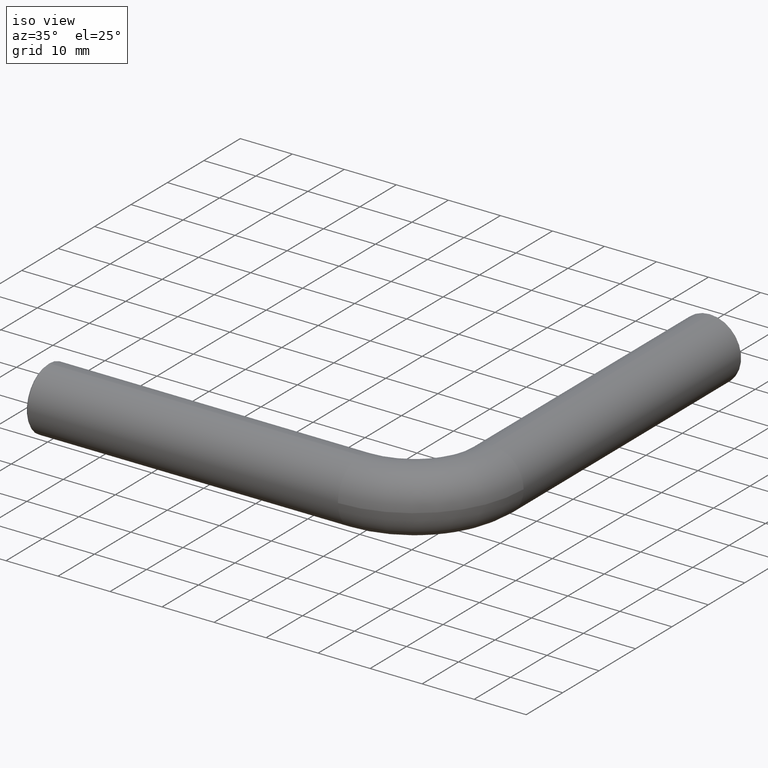
[diagram: clean part render]
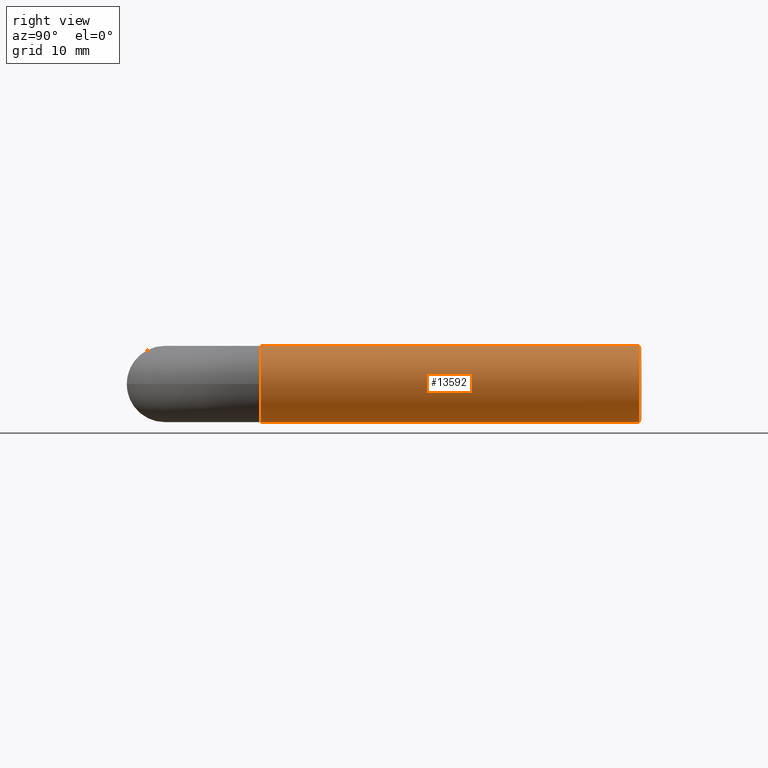
[diagram: tour spotlight — one face highlighted and labeled with its STEP entity id]
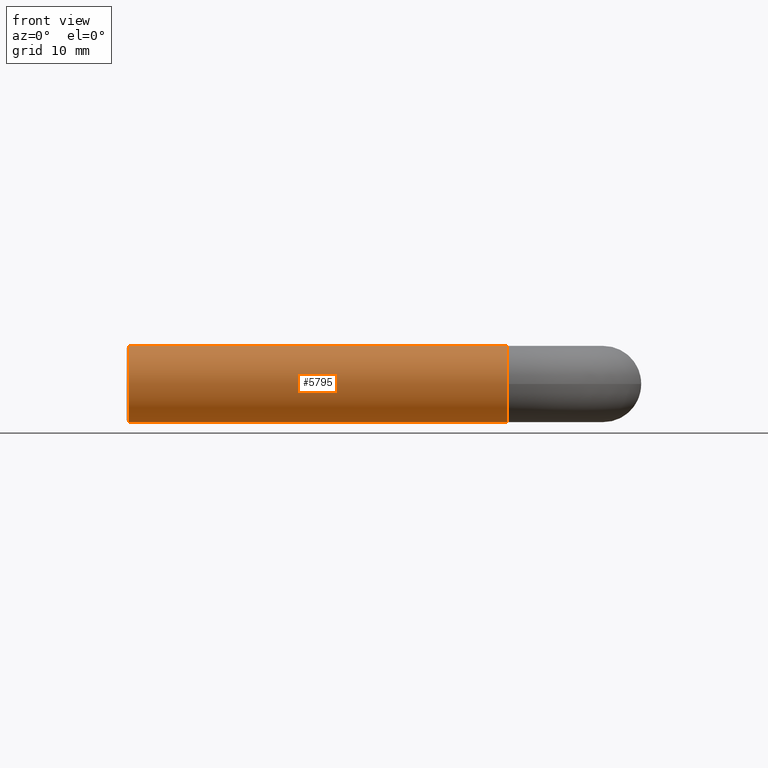
[diagram: tour spotlight — one face highlighted and labeled with its STEP entity id]
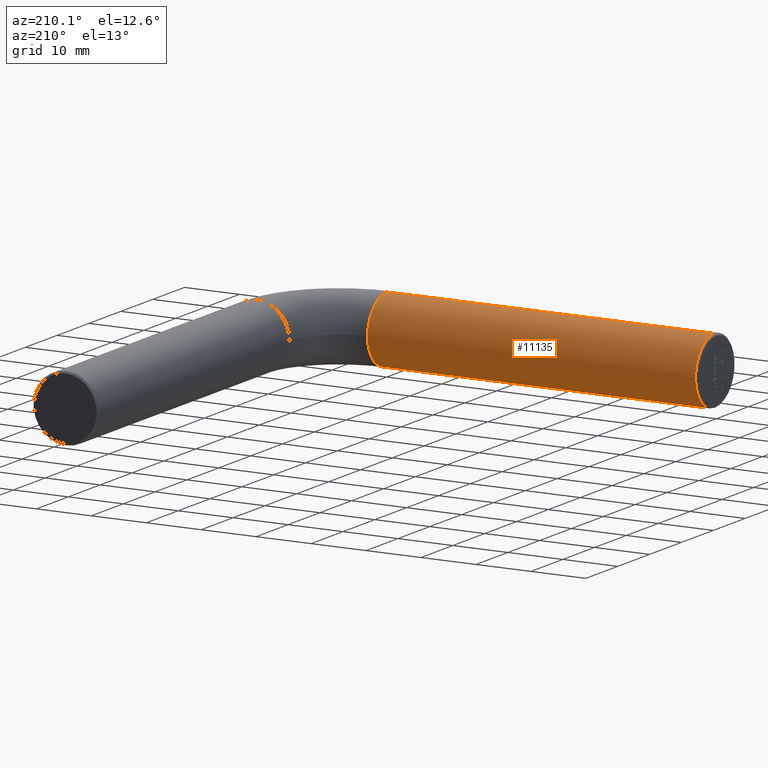
[diagram: tour spotlight — one face highlighted and labeled with its STEP entity id]
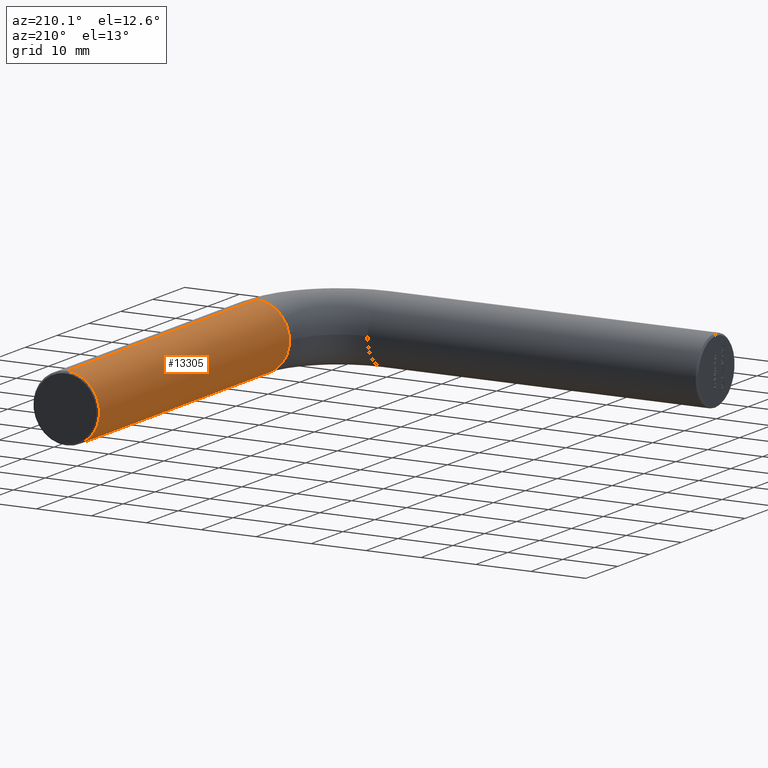
[diagram: tour spotlight — one face highlighted and labeled with its STEP entity id]
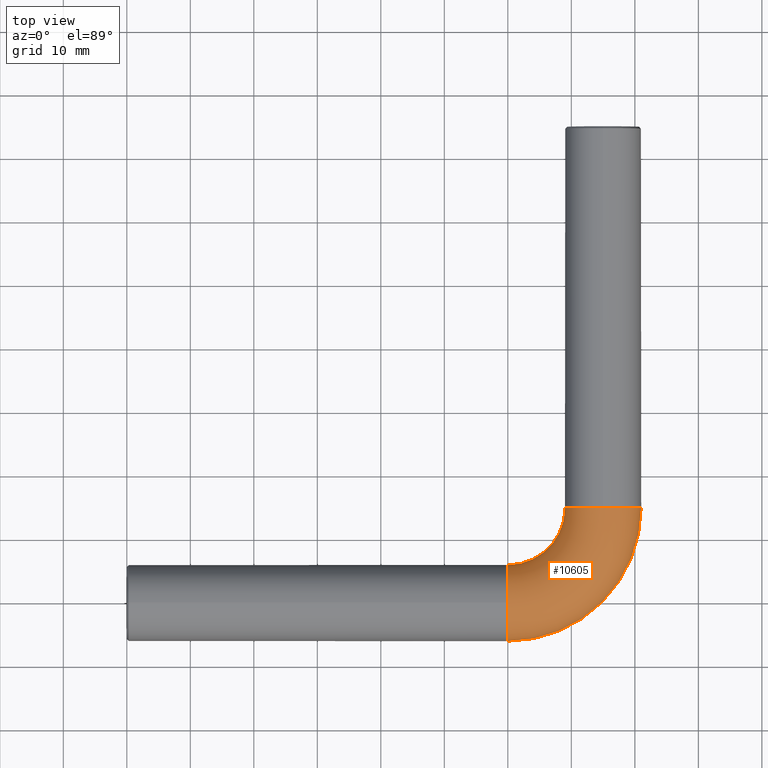
[diagram: tour spotlight — one face highlighted and labeled with its STEP entity id]
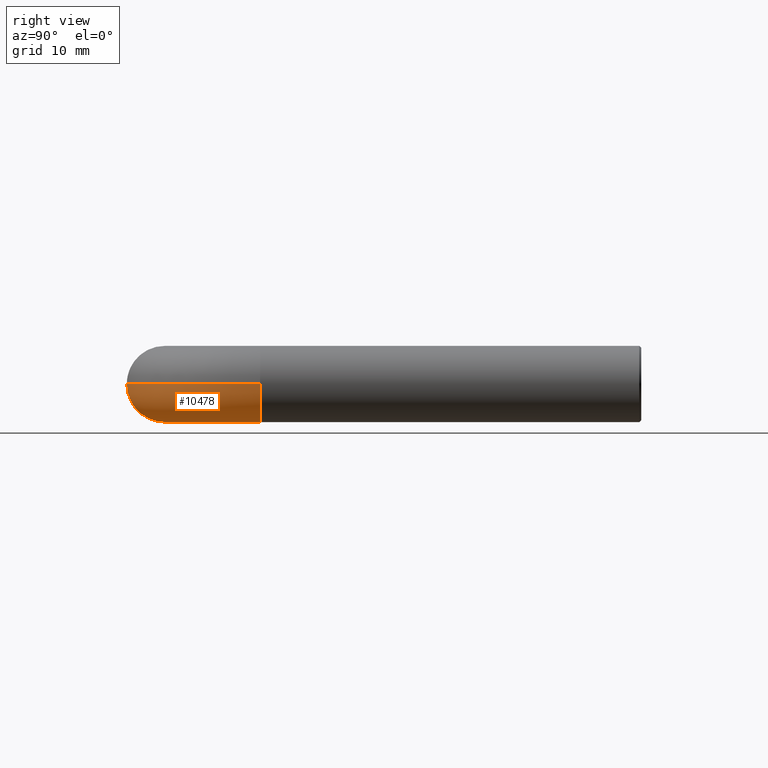
[diagram: tour spotlight — one face highlighted and labeled with its STEP entity id]
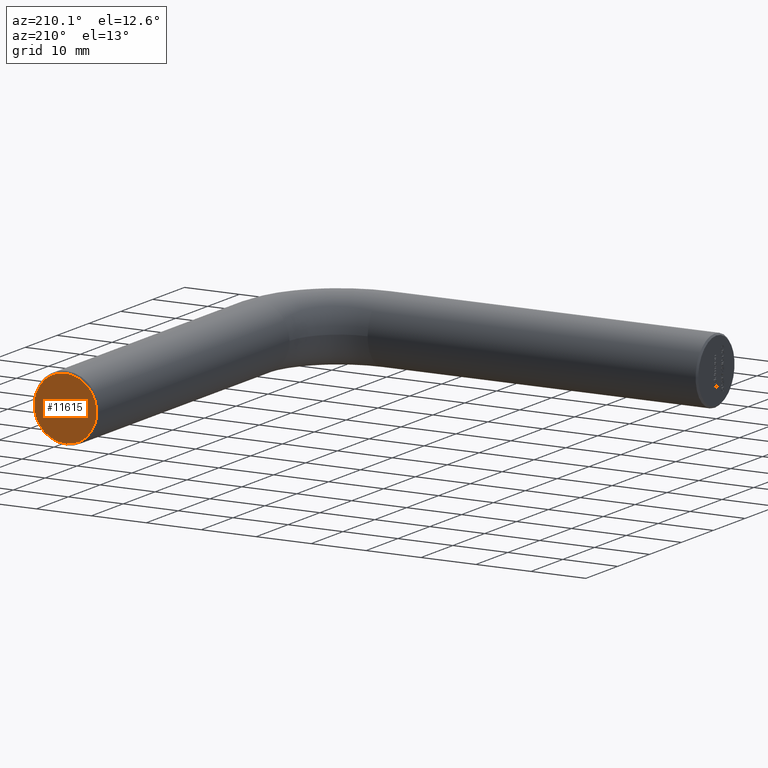
[diagram: tour spotlight — one face highlighted and labeled with its STEP entity id]
A machine part: a face-by-face anatomy tour. The part has 259 B-rep faces; the first image is the clean iso view, then the 7 largest visible faces are spotlighted one at a time (largest first), each with its STEP entity span.

Face 1 — right view, entity #13592. In plain terms, the highlighted cylindrical surface (partial cylindrical patch) has radius 6 mm, axis along (0, 1, 0).
Definition (entity closure, byte-faithful):
#992 = ORIENTED_EDGE ( 'NONE', *, *, #6968, .T. ) ;
#1020 = CYLINDRICAL_SURFACE ( 'NONE', #8392, 6.000000000000000888 ) ;
#1102 = AXIS2_PLACEMENT_3D ( 'NONE', #4839, #11248, #4744 ) ;
#1181 = CARTESIAN_POINT ( 'NONE',  ( 75.00000000000000000, 15.00000000000011013, 0.000000000000000000 ) ) ;
#1591 = VECTOR ( 'NONE', #3405, 1000.000000000000000 ) ;
#1702 = CARTESIAN_POINT ( 'NONE',  ( 75.00000000000000000, 15.00000000000011013, -6.000000000000000888 ) ) ;
#1904 = VECTOR ( 'NONE', #12526, 1000.000000000000000 ) ;
#2395 = CARTESIAN_POINT ( 'NONE',  ( 75.00000000000000000, 74.70000000000000284, 0.000000000000000000 ) ) ;
#2658 = AXIS2_PLACEMENT_3D ( 'NONE', #3732, #10163, #13520 ) ;
#2799 = VERTEX_POINT ( 'NONE', #13103 ) ;
#3320 = EDGE_LOOP ( 'NONE', ( #9783, #11270, #11471, #992, #11729 ) ) ;
#3405 = DIRECTION ( 'NONE',  ( 0.000000000000000000, 1.000000000000000000, 0.000000000000000000 ) ) ;
#3441 = FACE_OUTER_BOUND ( 'NONE', #3320, .T. ) ;
#3590 = VERTEX_POINT ( 'NONE', #4689 ) ;
#3633 = CARTESIAN_POINT ( 'NONE',  ( 81.00000000000000000, 15.00000000000019362, 0.000000000000000000 ) ) ;
#3732 = CARTESIAN_POINT ( 'NONE',  ( 75.00000000000000000, 15.00000000000011013, 0.000000000000000000 ) ) ;
#4454 = CARTESIAN_POINT ( 'NONE',  ( 75.00000000000000000, 15.00000000000011013, 6.000000000000000888 ) ) ;
#4529 = CIRCLE ( 'NONE', #2658, 6.000000000000000888 ) ;
#4689 = CARTESIAN_POINT ( 'NONE',  ( 75.00000000000000000, 74.70000000000000284, -6.000000000000000888 ) ) ;
#4702 = VERTEX_POINT ( 'NONE', #11988 ) ;
#4744 = DIRECTION ( 'NONE',  ( 0.000000000000000000, 0.000000000000000000, -1.000000000000000000 ) ) ;
#4839 = CARTESIAN_POINT ( 'NONE',  ( 75.00000000000000000, 15.00000000000011013, 0.000000000000000000 ) ) ;
#4892 = EDGE_CURVE ( 'NONE', #6827, #2799, #4529, .T. ) ;
#5303 = EDGE_CURVE ( 'NONE', #10239, #4702, #8286, .T. ) ;
#6515 = EDGE_CURVE ( 'NONE', #2799, #3590, #9151, .T. ) ;
#6827 = VERTEX_POINT ( 'NONE', #3633 ) ;
#6875 = DIRECTION ( 'NONE',  ( 0.000000000000000000, -1.000000000000000000, 0.000000000000000000 ) ) ;
#6968 = EDGE_CURVE ( 'NONE', #3590, #4702, #8413, .T. ) ;
#8282 = CIRCLE ( 'NONE', #1102, 6.000000000000000888 ) ;
#8286 = LINE ( 'NONE', #10971, #1591 ) ;
#8392 = AXIS2_PLACEMENT_3D ( 'NONE', #1181, #12144, #11036 ) ;
#8413 = CIRCLE ( 'NONE', #9513, 6.000000000000000888 ) ;
#9151 = LINE ( 'NONE', #1702, #1904 ) ;
#9513 = AXIS2_PLACEMENT_3D ( 'NONE', #2395, #6875, #10110 ) ;
#9783 = ORIENTED_EDGE ( 'NONE', *, *, #11741, .T. ) ;
#10110 = DIRECTION ( 'NONE',  ( 0.000000000000000000, 0.000000000000000000, 1.000000000000000000 ) ) ;
#10163 = DIRECTION ( 'NONE',  ( -1.414962237524463614E-14, 1.000000000000000000, 0.000000000000000000 ) ) ;
#10239 = VERTEX_POINT ( 'NONE', #4454 ) ;
#10971 = CARTESIAN_POINT ( 'NONE',  ( 75.00000000000000000, 15.00000000000011013, 6.000000000000000888 ) ) ;
#11036 = DIRECTION ( 'NONE',  ( 0.000000000000000000, 0.000000000000000000, 1.000000000000000000 ) ) ;
#11248 = DIRECTION ( 'NONE',  ( -1.414962237524463614E-14, 1.000000000000000000, 0.000000000000000000 ) ) ;
#11270 = ORIENTED_EDGE ( 'NONE', *, *, #4892, .T. ) ;
#11471 = ORIENTED_EDGE ( 'NONE', *, *, #6515, .T. ) ;
#11729 = ORIENTED_EDGE ( 'NONE', *, *, #5303, .F. ) ;
#11741 = EDGE_CURVE ( 'NONE', #10239, #6827, #8282, .T. ) ;
#11988 = CARTESIAN_POINT ( 'NONE',  ( 75.00000000000000000, 74.70000000000000284, 6.000000000000000888 ) ) ;
#12144 = DIRECTION ( 'NONE',  ( 0.000000000000000000, 1.000000000000000000, 0.000000000000000000 ) ) ;
#12526 = DIRECTION ( 'NONE',  ( 0.000000000000000000, 1.000000000000000000, 0.000000000000000000 ) ) ;
#13103 = CARTESIAN_POINT ( 'NONE',  ( 75.00000000000000000, 15.00000000000011013, -6.000000000000000888 ) ) ;
#13520 = DIRECTION ( 'NONE',  ( 0.000000000000000000, 0.000000000000000000, -1.000000000000000000 ) ) ;
#13592 = ADVANCED_FACE ( 'NONE', ( #3441 ), #1020, .T. ) ;

Face 2 — front view, entity #5795. In plain terms, the highlighted cylindrical surface (partial cylindrical patch) has radius 6 mm, axis along (-1, -0, -0).
Definition (entity closure, byte-faithful):
#73 = EDGE_CURVE ( 'NONE', #10549, #8979, #3873, .T. ) ;
#231 = CARTESIAN_POINT ( 'NONE',  ( 59.99999999999989342, 0.000000000000000000, 0.000000000000000000 ) ) ;
#633 = CARTESIAN_POINT ( 'NONE',  ( 59.99999999999989342, 0.000000000000000000, 6.000000000000000888 ) ) ;
#710 = EDGE_CURVE ( 'NONE', #10549, #13891, #2268, .T. ) ;
#1570 = CARTESIAN_POINT ( 'NONE',  ( 59.99999999999989342, 7.347880794884120722E-16, -6.000000000000000888 ) ) ;
#1973 = DIRECTION ( 'NONE',  ( 1.000000000000000000, -0.000000000000000000, -0.000000000000000000 ) ) ;
#2139 = CARTESIAN_POINT ( 'NONE',  ( 59.99999999999989342, 0.000000000000000000, 0.000000000000000000 ) ) ;
#2158 = EDGE_CURVE ( 'NONE', #8979, #4488, #7796, .T. ) ;
#2268 = LINE ( 'NONE', #6151, #13641 ) ;
#3040 = AXIS2_PLACEMENT_3D ( 'NONE', #2139, #6623, #11964 ) ;
#3679 = AXIS2_PLACEMENT_3D ( 'NONE', #6326, #7504, #7548 ) ;
#3873 = CIRCLE ( 'NONE', #3679, 6.000000000000000888 ) ;
#4488 = VERTEX_POINT ( 'NONE', #7062 ) ;
#4737 = AXIS2_PLACEMENT_3D ( 'NONE', #8449, #1973, #10677 ) ;
#5100 = ORIENTED_EDGE ( 'NONE', *, *, #710, .T. ) ;
#5355 = VECTOR ( 'NONE', #10383, 1000.000000000000000 ) ;
#5795 = ADVANCED_FACE ( 'NONE', ( #7913 ), #10859, .T. ) ;
#5871 = DIRECTION ( 'NONE',  ( 1.000000000000000000, 0.000000000000000000, 0.000000000000000000 ) ) ;
#5981 = CARTESIAN_POINT ( 'NONE',  ( 59.99999999999989342, -6.000000000000001776, 0.000000000000000000 ) ) ;
#6151 = CARTESIAN_POINT ( 'NONE',  ( 59.99999999999989342, 0.000000000000000000, 6.000000000000000888 ) ) ;
#6154 = VERTEX_POINT ( 'NONE', #8395 ) ;
#6326 = CARTESIAN_POINT ( 'NONE',  ( 59.99999999999989342, 0.000000000000000000, 0.000000000000000000 ) ) ;
#6443 = ORIENTED_EDGE ( 'NONE', *, *, #2158, .F. ) ;
#6531 = AXIS2_PLACEMENT_3D ( 'NONE', #231, #5871, #12480 ) ;
#6623 = DIRECTION ( 'NONE',  ( -1.000000000000000000, -0.000000000000000000, -0.000000000000000000 ) ) ;
#7062 = CARTESIAN_POINT ( 'NONE',  ( 59.99999999999989342, 7.347880794884120722E-16, -6.000000000000000888 ) ) ;
#7104 = DIRECTION ( 'NONE',  ( -1.000000000000000000, -0.000000000000000000, -0.000000000000000000 ) ) ;
#7504 = DIRECTION ( 'NONE',  ( 1.000000000000000000, 0.000000000000000000, 0.000000000000000000 ) ) ;
#7548 = DIRECTION ( 'NONE',  ( 0.000000000000000000, 0.000000000000000000, -1.000000000000000000 ) ) ;
#7796 = CIRCLE ( 'NONE', #6531, 6.000000000000000888 ) ;
#7913 = FACE_OUTER_BOUND ( 'NONE', #8847, .T. ) ;
#8395 = CARTESIAN_POINT ( 'NONE',  ( 0.3000000000000085931, 7.347880794884120722E-16, -6.000000000000000888 ) ) ;
#8449 = CARTESIAN_POINT ( 'NONE',  ( 0.3000000000000085931, 0.000000000000000000, 0.000000000000000000 ) ) ;
#8507 = ORIENTED_EDGE ( 'NONE', *, *, #73, .F. ) ;
#8654 = ORIENTED_EDGE ( 'NONE', *, *, #13407, .T. ) ;
#8847 = EDGE_LOOP ( 'NONE', ( #13479, #6443, #8507, #5100, #8654 ) ) ;
#8979 = VERTEX_POINT ( 'NONE', #5981 ) ;
#9315 = CIRCLE ( 'NONE', #4737, 6.000000000000000888 ) ;
#10383 = DIRECTION ( 'NONE',  ( -1.000000000000000000, -0.000000000000000000, -0.000000000000000000 ) ) ;
#10549 = VERTEX_POINT ( 'NONE', #633 ) ;
#10677 = DIRECTION ( 'NONE',  ( 0.000000000000000000, 0.000000000000000000, -1.000000000000000000 ) ) ;
#10859 = CYLINDRICAL_SURFACE ( 'NONE', #3040, 6.000000000000000888 ) ;
#11964 = DIRECTION ( 'NONE',  ( 0.000000000000000000, 0.000000000000000000, 1.000000000000000000 ) ) ;
#12139 = CARTESIAN_POINT ( 'NONE',  ( 0.3000000000000085931, 0.000000000000000000, 6.000000000000000888 ) ) ;
#12480 = DIRECTION ( 'NONE',  ( 0.000000000000000000, 0.000000000000000000, -1.000000000000000000 ) ) ;
#13407 = EDGE_CURVE ( 'NONE', #13891, #6154, #9315, .T. ) ;
#13414 = LINE ( 'NONE', #1570, #5355 ) ;
#13479 = ORIENTED_EDGE ( 'NONE', *, *, #14142, .F. ) ;
#13641 = VECTOR ( 'NONE', #7104, 1000.000000000000000 ) ;
#13891 = VERTEX_POINT ( 'NONE', #12139 ) ;
#14142 = EDGE_CURVE ( 'NONE', #4488, #6154, #13414, .T. ) ;

Face 3 — auxiliary view, entity #11135. In plain terms, the highlighted cylindrical surface (partial cylindrical patch) has radius 6 mm, axis along (-1, -0, -0).
Definition (entity closure, byte-faithful):
#104 = ORIENTED_EDGE ( 'NONE', *, *, #8830, .T. ) ;
#633 = CARTESIAN_POINT ( 'NONE',  ( 59.99999999999989342, 0.000000000000000000, 6.000000000000000888 ) ) ;
#710 = EDGE_CURVE ( 'NONE', #10549, #13891, #2268, .T. ) ;
#824 = ORIENTED_EDGE ( 'NONE', *, *, #9365, .F. ) ;
#1142 = DIRECTION ( 'NONE',  ( 1.000000000000000000, -0.000000000000000000, -0.000000000000000000 ) ) ;
#1202 = CIRCLE ( 'NONE', #3501, 6.000000000000000888 ) ;
#1570 = CARTESIAN_POINT ( 'NONE',  ( 59.99999999999989342, 7.347880794884120722E-16, -6.000000000000000888 ) ) ;
#1916 = DIRECTION ( 'NONE',  ( 0.000000000000000000, 0.000000000000000000, 1.000000000000000000 ) ) ;
#2268 = LINE ( 'NONE', #6151, #13641 ) ;
#2653 = CARTESIAN_POINT ( 'NONE',  ( 59.99999999999989342, 6.000000000000000888, -7.347880794884119736E-16 ) ) ;
#2933 = DIRECTION ( 'NONE',  ( -1.000000000000000000, -0.000000000000000000, -0.000000000000000000 ) ) ;
#3095 = CIRCLE ( 'NONE', #8089, 6.000000000000000888 ) ;
#3294 = CARTESIAN_POINT ( 'NONE',  ( 59.99999999999989342, 0.000000000000000000, 0.000000000000000000 ) ) ;
#3501 = AXIS2_PLACEMENT_3D ( 'NONE', #6023, #9348, #7144 ) ;
#3908 = VERTEX_POINT ( 'NONE', #2653 ) ;
#4194 = CYLINDRICAL_SURFACE ( 'NONE', #11226, 6.000000000000000888 ) ;
#4297 = CIRCLE ( 'NONE', #6897, 6.000000000000000888 ) ;
#4488 = VERTEX_POINT ( 'NONE', #7062 ) ;
#5355 = VECTOR ( 'NONE', #10383, 1000.000000000000000 ) ;
#5634 = EDGE_LOOP ( 'NONE', ( #824, #10951, #104, #13060, #12777 ) ) ;
#6023 = CARTESIAN_POINT ( 'NONE',  ( 59.99999999999989342, 0.000000000000000000, 0.000000000000000000 ) ) ;
#6151 = CARTESIAN_POINT ( 'NONE',  ( 59.99999999999989342, 0.000000000000000000, 6.000000000000000888 ) ) ;
#6154 = VERTEX_POINT ( 'NONE', #8395 ) ;
#6470 = EDGE_CURVE ( 'NONE', #3908, #10549, #1202, .T. ) ;
#6471 = DIRECTION ( 'NONE',  ( 0.000000000000000000, 0.000000000000000000, -1.000000000000000000 ) ) ;
#6897 = AXIS2_PLACEMENT_3D ( 'NONE', #3294, #14184, #6471 ) ;
#7062 = CARTESIAN_POINT ( 'NONE',  ( 59.99999999999989342, 7.347880794884120722E-16, -6.000000000000000888 ) ) ;
#7104 = DIRECTION ( 'NONE',  ( -1.000000000000000000, -0.000000000000000000, -0.000000000000000000 ) ) ;
#7144 = DIRECTION ( 'NONE',  ( 0.000000000000000000, 0.000000000000000000, -1.000000000000000000 ) ) ;
#8089 = AXIS2_PLACEMENT_3D ( 'NONE', #9876, #1142, #8804 ) ;
#8395 = CARTESIAN_POINT ( 'NONE',  ( 0.3000000000000085931, 7.347880794884120722E-16, -6.000000000000000888 ) ) ;
#8804 = DIRECTION ( 'NONE',  ( 0.000000000000000000, 0.000000000000000000, -1.000000000000000000 ) ) ;
#8830 = EDGE_CURVE ( 'NONE', #6154, #13891, #3095, .T. ) ;
#9348 = DIRECTION ( 'NONE',  ( 1.000000000000000000, 0.000000000000000000, 0.000000000000000000 ) ) ;
#9365 = EDGE_CURVE ( 'NONE', #4488, #3908, #4297, .T. ) ;
#9550 = CARTESIAN_POINT ( 'NONE',  ( 59.99999999999989342, 0.000000000000000000, 0.000000000000000000 ) ) ;
#9876 = CARTESIAN_POINT ( 'NONE',  ( 0.3000000000000085931, 0.000000000000000000, 0.000000000000000000 ) ) ;
#10383 = DIRECTION ( 'NONE',  ( -1.000000000000000000, -0.000000000000000000, -0.000000000000000000 ) ) ;
#10549 = VERTEX_POINT ( 'NONE', #633 ) ;
#10869 = FACE_OUTER_BOUND ( 'NONE', #5634, .T. ) ;
#10951 = ORIENTED_EDGE ( 'NONE', *, *, #14142, .T. ) ;
#11135 = ADVANCED_FACE ( 'NONE', ( #10869 ), #4194, .T. ) ;
#11226 = AXIS2_PLACEMENT_3D ( 'NONE', #9550, #2933, #1916 ) ;
#12139 = CARTESIAN_POINT ( 'NONE',  ( 0.3000000000000085931, 0.000000000000000000, 6.000000000000000888 ) ) ;
#12777 = ORIENTED_EDGE ( 'NONE', *, *, #6470, .F. ) ;
#13060 = ORIENTED_EDGE ( 'NONE', *, *, #710, .F. ) ;
#13414 = LINE ( 'NONE', #1570, #5355 ) ;
#13641 = VECTOR ( 'NONE', #7104, 1000.000000000000000 ) ;
#13891 = VERTEX_POINT ( 'NONE', #12139 ) ;
#14142 = EDGE_CURVE ( 'NONE', #4488, #6154, #13414, .T. ) ;
#14184 = DIRECTION ( 'NONE',  ( 1.000000000000000000, 0.000000000000000000, 0.000000000000000000 ) ) ;

Face 4 — auxiliary view, entity #13305. In plain terms, the highlighted cylindrical surface (partial cylindrical patch) has radius 6 mm, axis along (0, 1, 0).
Definition (entity closure, byte-faithful):
#112 = EDGE_CURVE ( 'NONE', #2799, #1680, #2450, .T. ) ;
#440 = CARTESIAN_POINT ( 'NONE',  ( 75.00000000000000000, 15.00000000000011013, 0.000000000000000000 ) ) ;
#447 = AXIS2_PLACEMENT_3D ( 'NONE', #13953, #10734, #4123 ) ;
#548 = AXIS2_PLACEMENT_3D ( 'NONE', #440, #13598, #7023 ) ;
#809 = AXIS2_PLACEMENT_3D ( 'NONE', #7317, #10590, #8513 ) ;
#1227 = EDGE_CURVE ( 'NONE', #4702, #3590, #9761, .T. ) ;
#1591 = VECTOR ( 'NONE', #3405, 1000.000000000000000 ) ;
#1680 = VERTEX_POINT ( 'NONE', #11662 ) ;
#1702 = CARTESIAN_POINT ( 'NONE',  ( 75.00000000000000000, 15.00000000000011013, -6.000000000000000888 ) ) ;
#1904 = VECTOR ( 'NONE', #12526, 1000.000000000000000 ) ;
#2220 = FACE_OUTER_BOUND ( 'NONE', #5963, .T. ) ;
#2450 = CIRCLE ( 'NONE', #447, 6.000000000000000888 ) ;
#2799 = VERTEX_POINT ( 'NONE', #13103 ) ;
#3405 = DIRECTION ( 'NONE',  ( 0.000000000000000000, 1.000000000000000000, 0.000000000000000000 ) ) ;
#3590 = VERTEX_POINT ( 'NONE', #4689 ) ;
#4123 = DIRECTION ( 'NONE',  ( 0.000000000000000000, 0.000000000000000000, -1.000000000000000000 ) ) ;
#4362 = ORIENTED_EDGE ( 'NONE', *, *, #6515, .F. ) ;
#4454 = CARTESIAN_POINT ( 'NONE',  ( 75.00000000000000000, 15.00000000000011013, 6.000000000000000888 ) ) ;
#4689 = CARTESIAN_POINT ( 'NONE',  ( 75.00000000000000000, 74.70000000000000284, -6.000000000000000888 ) ) ;
#4702 = VERTEX_POINT ( 'NONE', #11988 ) ;
#4852 = CIRCLE ( 'NONE', #548, 6.000000000000000888 ) ;
#5009 = ORIENTED_EDGE ( 'NONE', *, *, #112, .T. ) ;
#5210 = ORIENTED_EDGE ( 'NONE', *, *, #6074, .T. ) ;
#5303 = EDGE_CURVE ( 'NONE', #10239, #4702, #8286, .T. ) ;
#5963 = EDGE_LOOP ( 'NONE', ( #4362, #5009, #5210, #6052, #9881 ) ) ;
#6052 = ORIENTED_EDGE ( 'NONE', *, *, #5303, .T. ) ;
#6074 = EDGE_CURVE ( 'NONE', #1680, #10239, #4852, .T. ) ;
#6515 = EDGE_CURVE ( 'NONE', #2799, #3590, #9151, .T. ) ;
#6793 = DIRECTION ( 'NONE',  ( 0.000000000000000000, 0.000000000000000000, 1.000000000000000000 ) ) ;
#6978 = CARTESIAN_POINT ( 'NONE',  ( 75.00000000000000000, 15.00000000000011013, 0.000000000000000000 ) ) ;
#7023 = DIRECTION ( 'NONE',  ( 0.000000000000000000, 0.000000000000000000, -1.000000000000000000 ) ) ;
#7317 = CARTESIAN_POINT ( 'NONE',  ( 75.00000000000000000, 74.70000000000000284, 0.000000000000000000 ) ) ;
#8286 = LINE ( 'NONE', #10971, #1591 ) ;
#8513 = DIRECTION ( 'NONE',  ( 0.000000000000000000, 0.000000000000000000, 1.000000000000000000 ) ) ;
#9151 = LINE ( 'NONE', #1702, #1904 ) ;
#9761 = CIRCLE ( 'NONE', #809, 6.000000000000000888 ) ;
#9881 = ORIENTED_EDGE ( 'NONE', *, *, #1227, .T. ) ;
#10239 = VERTEX_POINT ( 'NONE', #4454 ) ;
#10336 = CYLINDRICAL_SURFACE ( 'NONE', #11333, 6.000000000000000888 ) ;
#10590 = DIRECTION ( 'NONE',  ( 0.000000000000000000, -1.000000000000000000, 0.000000000000000000 ) ) ;
#10734 = DIRECTION ( 'NONE',  ( -1.414962237524463614E-14, 1.000000000000000000, 0.000000000000000000 ) ) ;
#10971 = CARTESIAN_POINT ( 'NONE',  ( 75.00000000000000000, 15.00000000000011013, 6.000000000000000888 ) ) ;
#11333 = AXIS2_PLACEMENT_3D ( 'NONE', #6978, #13361, #6793 ) ;
#11662 = CARTESIAN_POINT ( 'NONE',  ( 68.99999999999998579, 15.00000000000002487, -7.347880794884114806E-16 ) ) ;
#11988 = CARTESIAN_POINT ( 'NONE',  ( 75.00000000000000000, 74.70000000000000284, 6.000000000000000888 ) ) ;
#12526 = DIRECTION ( 'NONE',  ( 0.000000000000000000, 1.000000000000000000, 0.000000000000000000 ) ) ;
#13103 = CARTESIAN_POINT ( 'NONE',  ( 75.00000000000000000, 15.00000000000011013, -6.000000000000000888 ) ) ;
#13305 = ADVANCED_FACE ( 'NONE', ( #2220 ), #10336, .T. ) ;
#13361 = DIRECTION ( 'NONE',  ( 0.000000000000000000, 1.000000000000000000, 0.000000000000000000 ) ) ;
#13598 = DIRECTION ( 'NONE',  ( -1.414962237524463614E-14, 1.000000000000000000, 0.000000000000000000 ) ) ;
#13953 = CARTESIAN_POINT ( 'NONE',  ( 75.00000000000000000, 15.00000000000011013, 0.000000000000000000 ) ) ;

Face 5 — top view, entity #10605. In plain terms, the highlighted toroidal blend (fillet) surface has major radius 15 mm and minor (blend) radius 6 mm.
Definition (entity closure, byte-faithful):
#73 = EDGE_CURVE ( 'NONE', #10549, #8979, #3873, .T. ) ;
#440 = CARTESIAN_POINT ( 'NONE',  ( 75.00000000000000000, 15.00000000000011013, 0.000000000000000000 ) ) ;
#548 = AXIS2_PLACEMENT_3D ( 'NONE', #440, #13598, #7023 ) ;
#633 = CARTESIAN_POINT ( 'NONE',  ( 59.99999999999989342, 0.000000000000000000, 6.000000000000000888 ) ) ;
#819 = DIRECTION ( 'NONE',  ( 0.000000000000000000, 0.000000000000000000, 1.000000000000000000 ) ) ;
#1102 = AXIS2_PLACEMENT_3D ( 'NONE', #4839, #11248, #4744 ) ;
#1202 = CIRCLE ( 'NONE', #3501, 6.000000000000000888 ) ;
#1248 = DIRECTION ( 'NONE',  ( 1.000000000000000000, 0.000000000000000000, 0.000000000000000000 ) ) ;
#1680 = VERTEX_POINT ( 'NONE', #11662 ) ;
#2350 = DIRECTION ( 'NONE',  ( 0.000000000000000000, 0.000000000000000000, 1.000000000000000000 ) ) ;
#2351 = FACE_OUTER_BOUND ( 'NONE', #3539, .T. ) ;
#2653 = CARTESIAN_POINT ( 'NONE',  ( 59.99999999999989342, 6.000000000000000888, -7.347880794884119736E-16 ) ) ;
#3501 = AXIS2_PLACEMENT_3D ( 'NONE', #6023, #9348, #7144 ) ;
#3539 = EDGE_LOOP ( 'NONE', ( #11944, #7795, #12838, #13662, #10321, #8888 ) ) ;
#3615 = DIRECTION ( 'NONE',  ( 0.000000000000000000, 0.000000000000000000, 1.000000000000000000 ) ) ;
#3633 = CARTESIAN_POINT ( 'NONE',  ( 81.00000000000000000, 15.00000000000019362, 0.000000000000000000 ) ) ;
#3679 = AXIS2_PLACEMENT_3D ( 'NONE', #6326, #7504, #7548 ) ;
#3764 = EDGE_CURVE ( 'NONE', #3908, #1680, #12908, .T. ) ;
#3873 = CIRCLE ( 'NONE', #3679, 6.000000000000000888 ) ;
#3908 = VERTEX_POINT ( 'NONE', #2653 ) ;
#4219 = CARTESIAN_POINT ( 'NONE',  ( 60.00000000000000000, 15.00000000000000000, 0.000000000000000000 ) ) ;
#4454 = CARTESIAN_POINT ( 'NONE',  ( 75.00000000000000000, 15.00000000000011013, 6.000000000000000888 ) ) ;
#4744 = DIRECTION ( 'NONE',  ( 0.000000000000000000, 0.000000000000000000, -1.000000000000000000 ) ) ;
#4839 = CARTESIAN_POINT ( 'NONE',  ( 75.00000000000000000, 15.00000000000011013, 0.000000000000000000 ) ) ;
#4852 = CIRCLE ( 'NONE', #548, 6.000000000000000888 ) ;
#5071 = AXIS2_PLACEMENT_3D ( 'NONE', #10060, #3615, #13406 ) ;
#5089 = AXIS2_PLACEMENT_3D ( 'NONE', #4219, #819, #6282 ) ;
#5981 = CARTESIAN_POINT ( 'NONE',  ( 59.99999999999989342, -6.000000000000001776, 0.000000000000000000 ) ) ;
#6023 = CARTESIAN_POINT ( 'NONE',  ( 59.99999999999989342, 0.000000000000000000, 0.000000000000000000 ) ) ;
#6074 = EDGE_CURVE ( 'NONE', #1680, #10239, #4852, .T. ) ;
#6282 = DIRECTION ( 'NONE',  ( 1.000000000000000000, 0.000000000000000000, 0.000000000000000000 ) ) ;
#6326 = CARTESIAN_POINT ( 'NONE',  ( 59.99999999999989342, 0.000000000000000000, 0.000000000000000000 ) ) ;
#6470 = EDGE_CURVE ( 'NONE', #3908, #10549, #1202, .T. ) ;
#6827 = VERTEX_POINT ( 'NONE', #3633 ) ;
#7023 = DIRECTION ( 'NONE',  ( 0.000000000000000000, 0.000000000000000000, -1.000000000000000000 ) ) ;
#7144 = DIRECTION ( 'NONE',  ( 0.000000000000000000, 0.000000000000000000, -1.000000000000000000 ) ) ;
#7504 = DIRECTION ( 'NONE',  ( 1.000000000000000000, 0.000000000000000000, 0.000000000000000000 ) ) ;
#7548 = DIRECTION ( 'NONE',  ( 0.000000000000000000, 0.000000000000000000, -1.000000000000000000 ) ) ;
#7693 = EDGE_CURVE ( 'NONE', #8979, #6827, #12885, .T. ) ;
#7795 = ORIENTED_EDGE ( 'NONE', *, *, #7693, .T. ) ;
#8282 = CIRCLE ( 'NONE', #1102, 6.000000000000000888 ) ;
#8550 = AXIS2_PLACEMENT_3D ( 'NONE', #13463, #2350, #1248 ) ;
#8720 = TOROIDAL_SURFACE ( 'NONE', #5089, 15.00000000000000000, 6.000000000000000888 ) ;
#8888 = ORIENTED_EDGE ( 'NONE', *, *, #6470, .T. ) ;
#8979 = VERTEX_POINT ( 'NONE', #5981 ) ;
#9348 = DIRECTION ( 'NONE',  ( 1.000000000000000000, 0.000000000000000000, 0.000000000000000000 ) ) ;
#10060 = CARTESIAN_POINT ( 'NONE',  ( 60.00000000000000000, 15.00000000000000000, 0.000000000000000000 ) ) ;
#10239 = VERTEX_POINT ( 'NONE', #4454 ) ;
#10321 = ORIENTED_EDGE ( 'NONE', *, *, #3764, .F. ) ;
#10549 = VERTEX_POINT ( 'NONE', #633 ) ;
#10605 = ADVANCED_FACE ( 'NONE', ( #2351 ), #8720, .T. ) ;
#11248 = DIRECTION ( 'NONE',  ( -1.414962237524463614E-14, 1.000000000000000000, 0.000000000000000000 ) ) ;
#11662 = CARTESIAN_POINT ( 'NONE',  ( 68.99999999999998579, 15.00000000000002487, -7.347880794884114806E-16 ) ) ;
#11741 = EDGE_CURVE ( 'NONE', #10239, #6827, #8282, .T. ) ;
#11944 = ORIENTED_EDGE ( 'NONE', *, *, #73, .T. ) ;
#12838 = ORIENTED_EDGE ( 'NONE', *, *, #11741, .F. ) ;
#12885 = CIRCLE ( 'NONE', #5071, 21.00000000000000355 ) ;
#12908 = CIRCLE ( 'NONE', #8550, 8.999999999999994671 ) ;
#13406 = DIRECTION ( 'NONE',  ( 1.000000000000000000, 0.000000000000000000, 0.000000000000000000 ) ) ;
#13463 = CARTESIAN_POINT ( 'NONE',  ( 60.00000000000000000, 15.00000000000000000, -7.347880794884120722E-16 ) ) ;
#13598 = DIRECTION ( 'NONE',  ( -1.414962237524463614E-14, 1.000000000000000000, 0.000000000000000000 ) ) ;
#13662 = ORIENTED_EDGE ( 'NONE', *, *, #6074, .F. ) ;

Face 6 — right view, entity #10478. In plain terms, the highlighted toroidal blend (fillet) surface has major radius 15 mm and minor (blend) radius 6 mm.
Definition (entity closure, byte-faithful):
#112 = EDGE_CURVE ( 'NONE', #2799, #1680, #2450, .T. ) ;
#231 = CARTESIAN_POINT ( 'NONE',  ( 59.99999999999989342, 0.000000000000000000, 0.000000000000000000 ) ) ;
#447 = AXIS2_PLACEMENT_3D ( 'NONE', #13953, #10734, #4123 ) ;
#1248 = DIRECTION ( 'NONE',  ( 1.000000000000000000, 0.000000000000000000, 0.000000000000000000 ) ) ;
#1680 = VERTEX_POINT ( 'NONE', #11662 ) ;
#2158 = EDGE_CURVE ( 'NONE', #8979, #4488, #7796, .T. ) ;
#2350 = DIRECTION ( 'NONE',  ( 0.000000000000000000, 0.000000000000000000, 1.000000000000000000 ) ) ;
#2450 = CIRCLE ( 'NONE', #447, 6.000000000000000888 ) ;
#2653 = CARTESIAN_POINT ( 'NONE',  ( 59.99999999999989342, 6.000000000000000888, -7.347880794884119736E-16 ) ) ;
#2658 = AXIS2_PLACEMENT_3D ( 'NONE', #3732, #10163, #13520 ) ;
#2799 = VERTEX_POINT ( 'NONE', #13103 ) ;
#3294 = CARTESIAN_POINT ( 'NONE',  ( 59.99999999999989342, 0.000000000000000000, 0.000000000000000000 ) ) ;
#3615 = DIRECTION ( 'NONE',  ( 0.000000000000000000, 0.000000000000000000, 1.000000000000000000 ) ) ;
#3633 = CARTESIAN_POINT ( 'NONE',  ( 81.00000000000000000, 15.00000000000019362, 0.000000000000000000 ) ) ;
#3732 = CARTESIAN_POINT ( 'NONE',  ( 75.00000000000000000, 15.00000000000011013, 0.000000000000000000 ) ) ;
#3764 = EDGE_CURVE ( 'NONE', #3908, #1680, #12908, .T. ) ;
#3908 = VERTEX_POINT ( 'NONE', #2653 ) ;
#4123 = DIRECTION ( 'NONE',  ( 0.000000000000000000, 0.000000000000000000, -1.000000000000000000 ) ) ;
#4297 = CIRCLE ( 'NONE', #6897, 6.000000000000000888 ) ;
#4488 = VERTEX_POINT ( 'NONE', #7062 ) ;
#4529 = CIRCLE ( 'NONE', #2658, 6.000000000000000888 ) ;
#4892 = EDGE_CURVE ( 'NONE', #6827, #2799, #4529, .T. ) ;
#5071 = AXIS2_PLACEMENT_3D ( 'NONE', #10060, #3615, #13406 ) ;
#5871 = DIRECTION ( 'NONE',  ( 1.000000000000000000, 0.000000000000000000, 0.000000000000000000 ) ) ;
#5932 = ORIENTED_EDGE ( 'NONE', *, *, #7693, .F. ) ;
#5981 = CARTESIAN_POINT ( 'NONE',  ( 59.99999999999989342, -6.000000000000001776, 0.000000000000000000 ) ) ;
#6179 = DIRECTION ( 'NONE',  ( 1.000000000000000000, 0.000000000000000000, 0.000000000000000000 ) ) ;
#6356 = ORIENTED_EDGE ( 'NONE', *, *, #112, .F. ) ;
#6471 = DIRECTION ( 'NONE',  ( 0.000000000000000000, 0.000000000000000000, -1.000000000000000000 ) ) ;
#6531 = AXIS2_PLACEMENT_3D ( 'NONE', #231, #5871, #12480 ) ;
#6827 = VERTEX_POINT ( 'NONE', #3633 ) ;
#6897 = AXIS2_PLACEMENT_3D ( 'NONE', #3294, #14184, #6471 ) ;
#7062 = CARTESIAN_POINT ( 'NONE',  ( 59.99999999999989342, 7.347880794884120722E-16, -6.000000000000000888 ) ) ;
#7693 = EDGE_CURVE ( 'NONE', #8979, #6827, #12885, .T. ) ;
#7796 = CIRCLE ( 'NONE', #6531, 6.000000000000000888 ) ;
#7806 = ORIENTED_EDGE ( 'NONE', *, *, #2158, .T. ) ;
#8550 = AXIS2_PLACEMENT_3D ( 'NONE', #13463, #2350, #1248 ) ;
#8979 = VERTEX_POINT ( 'NONE', #5981 ) ;
#9365 = EDGE_CURVE ( 'NONE', #4488, #3908, #4297, .T. ) ;
#10060 = CARTESIAN_POINT ( 'NONE',  ( 60.00000000000000000, 15.00000000000000000, 0.000000000000000000 ) ) ;
#10163 = DIRECTION ( 'NONE',  ( -1.414962237524463614E-14, 1.000000000000000000, 0.000000000000000000 ) ) ;
#10478 = ADVANCED_FACE ( 'NONE', ( #14065 ), #11116, .T. ) ;
#10610 = ORIENTED_EDGE ( 'NONE', *, *, #3764, .T. ) ;
#10734 = DIRECTION ( 'NONE',  ( -1.414962237524463614E-14, 1.000000000000000000, 0.000000000000000000 ) ) ;
#11116 = TOROIDAL_SURFACE ( 'NONE', #12157, 15.00000000000000000, 6.000000000000000888 ) ;
#11643 = DIRECTION ( 'NONE',  ( 0.000000000000000000, 0.000000000000000000, 1.000000000000000000 ) ) ;
#11662 = CARTESIAN_POINT ( 'NONE',  ( 68.99999999999998579, 15.00000000000002487, -7.347880794884114806E-16 ) ) ;
#12130 = ORIENTED_EDGE ( 'NONE', *, *, #9365, .T. ) ;
#12157 = AXIS2_PLACEMENT_3D ( 'NONE', #13859, #11643, #6179 ) ;
#12255 = ORIENTED_EDGE ( 'NONE', *, *, #4892, .F. ) ;
#12480 = DIRECTION ( 'NONE',  ( 0.000000000000000000, 0.000000000000000000, -1.000000000000000000 ) ) ;
#12885 = CIRCLE ( 'NONE', #5071, 21.00000000000000355 ) ;
#12908 = CIRCLE ( 'NONE', #8550, 8.999999999999994671 ) ;
#13103 = CARTESIAN_POINT ( 'NONE',  ( 75.00000000000000000, 15.00000000000011013, -6.000000000000000888 ) ) ;
#13406 = DIRECTION ( 'NONE',  ( 1.000000000000000000, 0.000000000000000000, 0.000000000000000000 ) ) ;
#13463 = CARTESIAN_POINT ( 'NONE',  ( 60.00000000000000000, 15.00000000000000000, -7.347880794884120722E-16 ) ) ;
#13520 = DIRECTION ( 'NONE',  ( 0.000000000000000000, 0.000000000000000000, -1.000000000000000000 ) ) ;
#13859 = CARTESIAN_POINT ( 'NONE',  ( 60.00000000000000000, 15.00000000000000000, 0.000000000000000000 ) ) ;
#13946 = EDGE_LOOP ( 'NONE', ( #5932, #7806, #12130, #10610, #6356, #12255 ) ) ;
#13953 = CARTESIAN_POINT ( 'NONE',  ( 75.00000000000000000, 15.00000000000011013, 0.000000000000000000 ) ) ;
#14065 = FACE_OUTER_BOUND ( 'NONE', #13946, .T. ) ;
#14184 = DIRECTION ( 'NONE',  ( 1.000000000000000000, 0.000000000000000000, 0.000000000000000000 ) ) ;

Face 7 — auxiliary view, entity #11615. In plain terms, the highlighted planar face has unit normal (-0, 1, 0).
Definition (entity closure, byte-faithful):
#403 = DIRECTION ( 'NONE',  ( -1.414962237524463614E-14, 1.000000000000000000, 0.000000000000000000 ) ) ;
#915 = AXIS2_PLACEMENT_3D ( 'NONE', #10416, #403, #9170 ) ;
#2053 = CIRCLE ( 'NONE', #2678, 5.700000000000010836 ) ;
#2120 = DIRECTION ( 'NONE',  ( -0.000000000000000000, 0.000000000000000000, -1.000000000000000000 ) ) ;
#2284 = ORIENTED_EDGE ( 'NONE', *, *, #8162, .T. ) ;
#2678 = AXIS2_PLACEMENT_3D ( 'NONE', #12078, #4232, #11902 ) ;
#3363 = ORIENTED_EDGE ( 'NONE', *, *, #10370, .T. ) ;
#4232 = DIRECTION ( 'NONE',  ( -1.414962237524463614E-14, 1.000000000000000000, 0.000000000000000000 ) ) ;
#6422 = FACE_OUTER_BOUND ( 'NONE', #7096, .T. ) ;
#7096 = EDGE_LOOP ( 'NONE', ( #2284, #3363 ) ) ;
#7135 = VERTEX_POINT ( 'NONE', #13062 ) ;
#7612 = DIRECTION ( 'NONE',  ( -1.414962237524463614E-14, 1.000000000000000000, 0.000000000000000000 ) ) ;
#8162 = EDGE_CURVE ( 'NONE', #7135, #13287, #2053, .T. ) ;
#9170 = DIRECTION ( 'NONE',  ( -1.000000000000000000, -1.460819769243624370E-14, 0.000000000000000000 ) ) ;
#9800 = AXIS2_PLACEMENT_3D ( 'NONE', #9891, #7612, #2120 ) ;
#9891 = CARTESIAN_POINT ( 'NONE',  ( 75.00000000000000000, 75.00000000000000000, 0.000000000000000000 ) ) ;
#10370 = EDGE_CURVE ( 'NONE', #13287, #7135, #12159, .T. ) ;
#10416 = CARTESIAN_POINT ( 'NONE',  ( 75.00000000000000000, 75.00000000000000000, 0.000000000000000000 ) ) ;
#11615 = ADVANCED_FACE ( 'NONE', ( #6422 ), #13041, .T. ) ;
#11902 = DIRECTION ( 'NONE',  ( -1.000000000000000000, -1.460819769243624370E-14, 0.000000000000000000 ) ) ;
#12078 = CARTESIAN_POINT ( 'NONE',  ( 75.00000000000000000, 75.00000000000000000, 0.000000000000000000 ) ) ;
#12159 = CIRCLE ( 'NONE', #915, 5.700000000000010836 ) ;
#13041 = PLANE ( 'NONE',  #9800 ) ;
#13062 = CARTESIAN_POINT ( 'NONE',  ( 75.00000000000000000, 75.00000000000000000, -5.700000000000006395 ) ) ;
#13287 = VERTEX_POINT ( 'NONE', #13554 ) ;
#13554 = CARTESIAN_POINT ( 'NONE',  ( 75.00000000000000000, 75.00000000000000000, 5.700000000000006395 ) ) ;